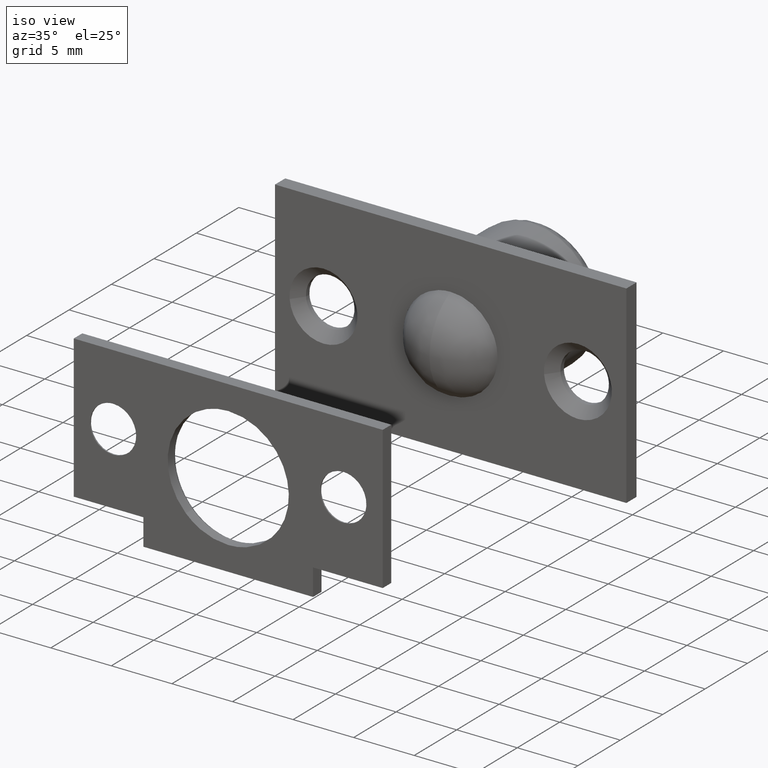
[diagram: clean part render]
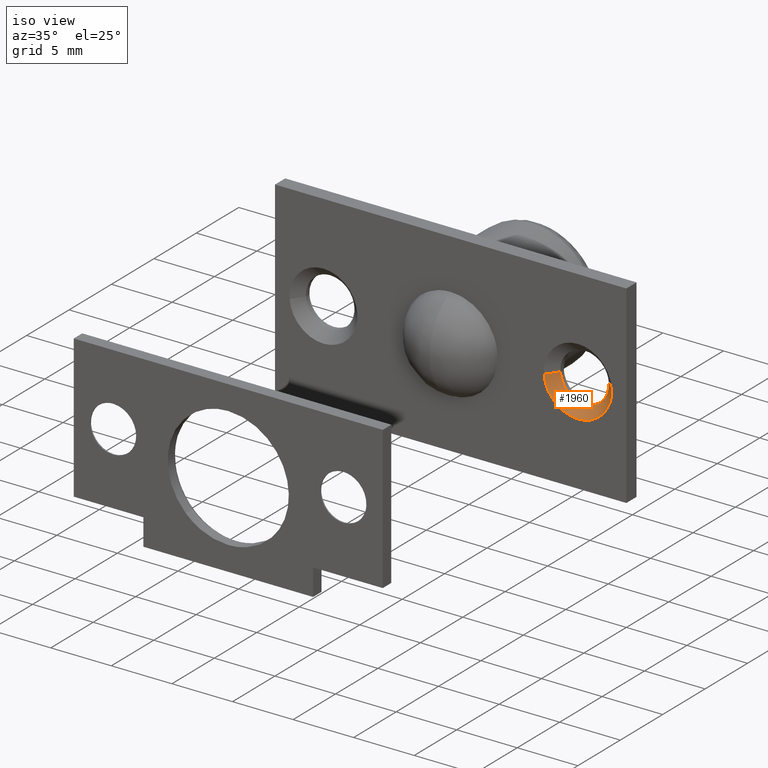
[diagram: same view with one face highlighted and labeled with its STEP entity id]
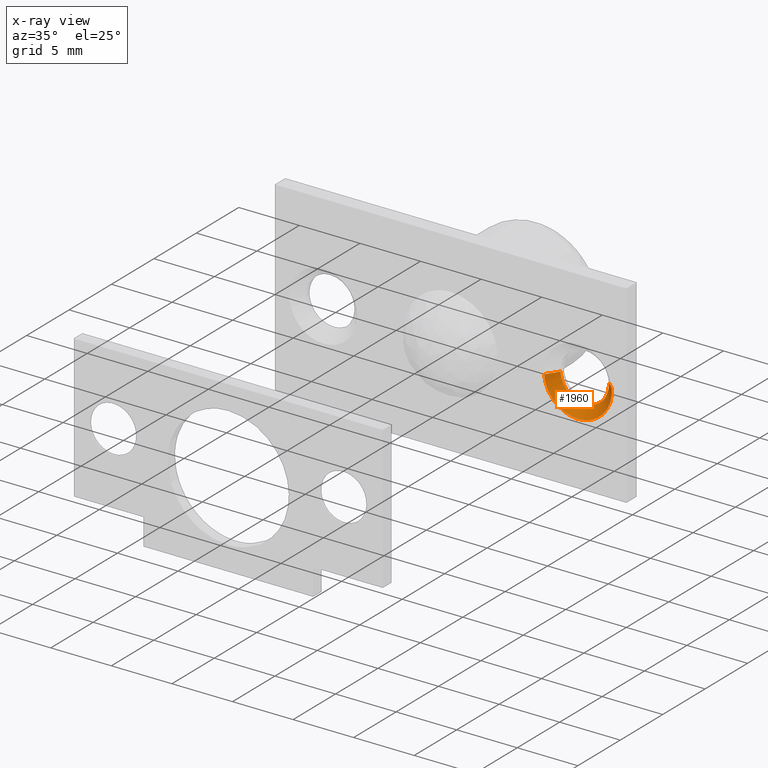
[diagram: x-ray of the same camera — body ghosted, the highlighted face saturated]
A machine part, iso view. The second image highlights one B-rep face of the part: STEP entity #1960.
The next image is the same camera in x-ray: the body ghosted, the highlighted face saturated — about 0% of this face is hidden behind the body in this view.
In plain terms, the highlighted face is a freeform B-spline surface patch.
Its self-contained STEP definition (entity closure, byte-faithful):
#1651=CARTESIAN_POINT('',(12.486938385723960,0.800000000000000,-0.228201339471680));
#1652=VERTEX_POINT('',#1651);
#1653=CARTESIAN_POINT('',(10.500000000000000,0.800000000000000,-2.000000000000003));
#1654=VERTEX_POINT('',#1653);
#1655=CARTESIAN_POINT('',(12.486938385723962,0.800000000000000,-0.228201339471680));
#1656=CARTESIAN_POINT('',(12.283445993384460,0.800000000000000,-2.000000000000003));
#1657=CARTESIAN_POINT('',(10.500000000000000,0.800000000000000,-2.000000000000003));
#1665=(BOUNDED_CURVE()B_SPLINE_CURVE(2,(#1655,#1656,#1657),.UNSPECIFIED.,.F.,.U.)B_SPLINE_CURVE_WITH_KNOTS((3,3),(0.269767757578554,0.500000000000000),.UNSPECIFIED.)CURVE()GEOMETRIC_REPRESENTATION_ITEM()RATIONAL_B_SPLINE_CURVE((0.957343733103414,0.730266149770175,1.0))REPRESENTATION_ITEM(''));
#1666=EDGE_CURVE('',#1652,#1654,#1665,.T.);
#1705=CARTESIAN_POINT('',(8.503730388263534,0.799999999996095,-0.122096835575187));
#1706=VERTEX_POINT('',#1705);
#1712=CARTESIAN_POINT('',(10.500000000000000,0.800000000000000,-2.000000000000003));
#1713=CARTESIAN_POINT('',(8.618587636274949,0.800000000000000,-2.000000000000004));
#1714=CARTESIAN_POINT('',(8.503730388263534,0.799999999996095,-0.122096835575187));
#1722=(BOUNDED_CURVE()B_SPLINE_CURVE(2,(#1712,#1713,#1714),.UNSPECIFIED.,.F.,.U.)B_SPLINE_CURVE_WITH_KNOTS((3,3),(0.500000000000000,0.739332983288324),.UNSPECIFIED.)CURVE()GEOMETRIC_REPRESENTATION_ITEM()RATIONAL_B_SPLINE_CURVE((1.0,0.719603968625826,0.976072086779552))REPRESENTATION_ITEM(''));
#1723=EDGE_CURVE('',#1654,#1706,#1722,.T.);
#1750=CARTESIAN_POINT('',(12.493834667473569,0.799999999981999,0.156918191592161));
#1751=VERTEX_POINT('',#1750);
#1752=CARTESIAN_POINT('',(12.493834667473577,0.799999999981999,0.156918191592161));
#1753=CARTESIAN_POINT('',(12.499999999999998,0.800000000000000,0.078580214151024));
#1754=CARTESIAN_POINT('',(12.500000000000000,0.800000000000000,-2.847210E-015));
#1755=CARTESIAN_POINT('',(12.499999999999998,0.800000000000000,-0.114474480140168));
#1756=CARTESIAN_POINT('',(12.486938385723956,0.800000000000000,-0.228201339471680));
#1764=(BOUNDED_CURVE()B_SPLINE_CURVE(2,(#1752,#1753,#1754,#1755,#1756),.UNSPECIFIED.,.F.,.U.)B_SPLINE_CURVE_WITH_KNOTS((3,2,3),(0.236331300609542,0.250000000000000,0.269767757578554),.UNSPECIFIED.)CURVE()GEOMETRIC_REPRESENTATION_ITEM()RATIONAL_B_SPLINE_CURVE((0.969723356123348,0.983986122554142,1.0,0.976840631416373,0.957343733103414))REPRESENTATION_ITEM(''));
#1765=EDGE_CURVE('',#1751,#1652,#1764,.T.);
#1853=CARTESIAN_POINT('',(13.291368534534920,-2.072787E-010,0.219685469635826));
#1854=VERTEX_POINT('',#1853);
#1855=CARTESIAN_POINT('',(12.493834667473569,0.799999999981999,0.156918191592161));
#1856=CARTESIAN_POINT('',(13.291368534534920,-2.072787E-010,0.219685469635826));
#1857=QUASI_UNIFORM_CURVE('',1,(#1855,#1856),.UNSPECIFIED.,.F.,.U.);
#1858=EDGE_CURVE('',#1751,#1854,#1857,.T.);
#1875=CARTESIAN_POINT('',(7.708631465465077,-2.072782E-010,-0.219685469635831));
#1876=VERTEX_POINT('',#1875);
#1892=CARTESIAN_POINT('',(8.503730388263534,0.799999999996095,-0.122096835575187));
#1893=CARTESIAN_POINT('',(7.708631465465077,-2.072782E-010,-0.219685469635831));
#1894=QUASI_UNIFORM_CURVE('',1,(#1892,#1893),.UNSPECIFIED.,.F.,.U.);
#1895=EDGE_CURVE('',#1706,#1876,#1894,.T.);
#1901=CARTESIAN_POINT('',(8.521245472882510,0.820000000000000,-0.093619645313675));
#1902=CARTESIAN_POINT('',(8.523658740619846,0.820000000000000,-0.124283119267457));
#1903=CARTESIAN_POINT('',(8.681452688749543,0.820000000000000,-2.129245330332727));
#1904=CARTESIAN_POINT('',(10.655349009541130,0.820000000000000,-1.973896320791594));
#1905=CARTESIAN_POINT('',(12.629245330332722,0.820000000000000,-1.818547311250461));
#1906=CARTESIAN_POINT('',(12.472794306434967,0.820000000000000,0.169351429578621));
#1907=CARTESIAN_POINT('',(12.471698749305862,0.820000000000000,0.183271802761085));
#1908=CARTESIAN_POINT('',(7.681274169830867,-0.020500000000000,-0.133360711922837));
#1909=CARTESIAN_POINT('',(7.684711857534478,-0.020500000000000,-0.177040675703970));
#1910=CARTESIAN_POINT('',(7.909488539706103,-0.020500000000000,-3.033099219294678));
#1911=CARTESIAN_POINT('',(10.721293879500390,-0.020500000000000,-2.811805339794289));
#1912=CARTESIAN_POINT('',(13.533099219294675,-0.020500000000000,-2.590511460293901));
#1913=CARTESIAN_POINT('',(13.310235525908999,-0.020500000000000,0.241240256124496));
#1914=CARTESIAN_POINT('',(13.308674910311719,-0.020500000000000,0.261069757418001));
#1922=(BOUNDED_SURFACE()B_SPLINE_SURFACE(2,1,((#1901,#1908),(#1902,#1909),(#1903,#1910),(#1904,#1911),(#1905,#1912),(#1906,#1913),(#1907,#1914)),.UNSPECIFIED.,.F.,.F.,.U.)B_SPLINE_SURFACE_WITH_KNOTS((3,1,2,1,3),(2,2),(0.0,0.104694851899091,4.777852262592351,9.451009673285611,9.498029622744777),(0.0,1.0),.UNSPECIFIED.)GEOMETRIC_REPRESENTATION_ITEM()RATIONAL_B_SPLINE_SURFACE(((1.013123637605596,1.013123637605596),(1.006561818802798,1.006561818802798),(0.707106781186548,0.707106781186548),(1.0,1.0),(0.707106781186548,0.707106781186548),(1.002947006303282,1.002947006303282),(1.005894012606564,1.005894012606564)))REPRESENTATION_ITEM('')SURFACE());
#1923=ORIENTED_EDGE('',*,*,#1765,.T.);
#1924=ORIENTED_EDGE('',*,*,#1666,.T.);
#1925=ORIENTED_EDGE('',*,*,#1723,.T.);
#1926=ORIENTED_EDGE('',*,*,#1895,.T.);
#1927=CARTESIAN_POINT('',(10.500000000000000,0.0,-2.800000000000003));
#1928=VERTEX_POINT('',#1927);
#1929=CARTESIAN_POINT('',(10.500000000000000,0.0,-2.800000000000003));
#1930=CARTESIAN_POINT('',(7.911706626299153,0.0,-2.800000000000003));
#1931=CARTESIAN_POINT('',(7.708631465465077,-2.072782E-010,-0.219685469635831));
#1939=(BOUNDED_CURVE()B_SPLINE_CURVE(2,(#1929,#1930,#1931),.UNSPECIFIED.,.F.,.U.)B_SPLINE_CURVE_WITH_KNOTS((3,3),(0.500000000000000,0.736331300438508),.UNSPECIFIED.)CURVE()GEOMETRIC_REPRESENTATION_ITEM()RATIONAL_B_SPLINE_CURVE((1.0,0.723120658832785,0.969723355766412))REPRESENTATION_ITEM(''));
#1940=EDGE_CURVE('',#1928,#1876,#1939,.T.);
#1941=ORIENTED_EDGE('',*,*,#1940,.F.);
#1942=CARTESIAN_POINT('',(13.291368534534929,-2.072787E-010,0.219685469635826));
#1943=CARTESIAN_POINT('',(13.300000000000001,0.0,0.110012301210412));
#1944=CARTESIAN_POINT('',(13.300000000000001,0.0,-2.847210E-015));
#1945=CARTESIAN_POINT('',(13.300000000000002,0.0,-2.800000000000003));
#1946=CARTESIAN_POINT('',(10.500000000000000,0.0,-2.800000000000003));
#1954=(BOUNDED_CURVE()B_SPLINE_CURVE(2,(#1942,#1943,#1944,#1945,#1946),.UNSPECIFIED.,.F.,.U.)B_SPLINE_CURVE_WITH_KNOTS((3,2,3),(0.236331300438507,0.250000000000000,0.500000000000000),.UNSPECIFIED.)CURVE()GEOMETRIC_REPRESENTATION_ITEM()RATIONAL_B_SPLINE_CURVE((0.969723355766411,0.983986122353762,1.0,0.707106781186547,1.0))REPRESENTATION_ITEM(''));
#1955=EDGE_CURVE('',#1854,#1928,#1954,.T.);
#1956=ORIENTED_EDGE('',*,*,#1955,.F.);
#1957=ORIENTED_EDGE('',*,*,#1858,.F.);
#1958=EDGE_LOOP('',(#1923,#1924,#1925,#1926,#1941,#1956,#1957));
#1959=FACE_OUTER_BOUND('',#1958,.T.);
#1960=ADVANCED_FACE('',(#1959),#1922,.F.);